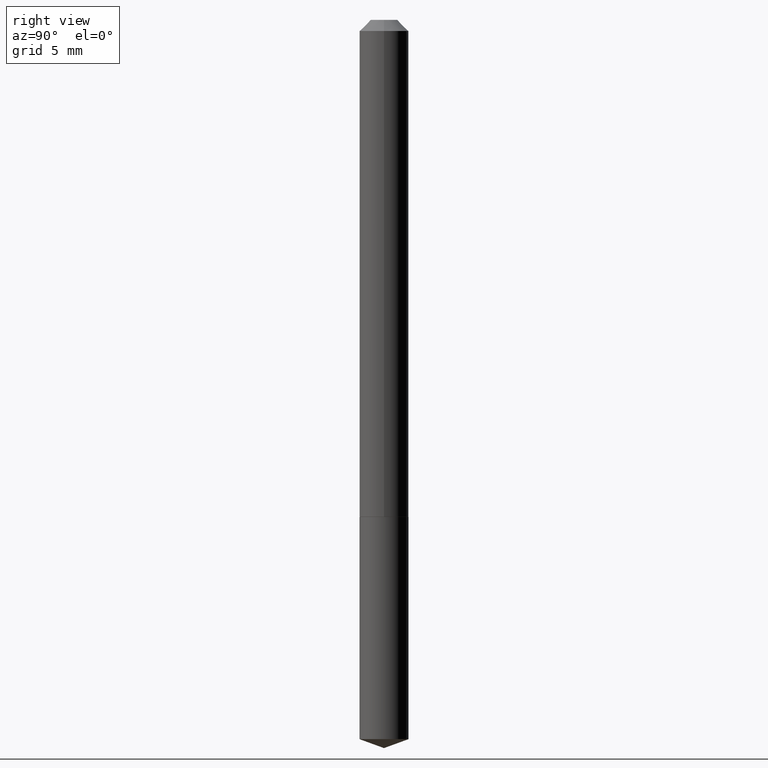
[diagram: clean part render]
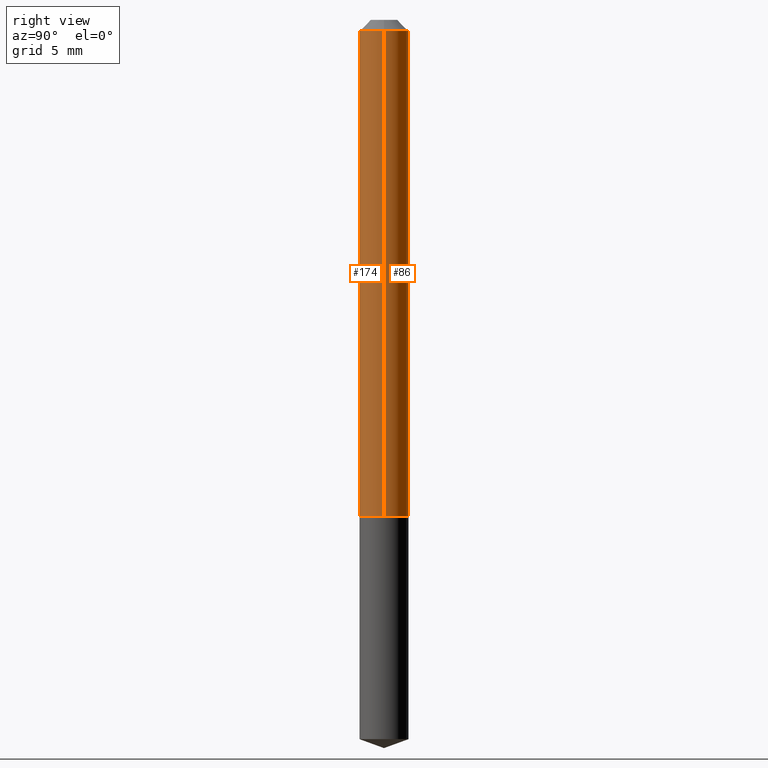
[diagram: same view with one multi-face feature highlighted, each face labeled with its STEP entity id]
A machine part, right view. The highlighted faces form ONE feature: a constant-radius fillet chain: 2 tangent blend faces with common blend radius 1.7501 mm. The faces share edges in the B-rep.
Their STEP definitions:
[1] entity #174 (Cylinder):
#8 = VECTOR ( 'NONE', #107, 39.37007874015748143 ) ;
#16 = CARTESIAN_POINT ( 'NONE',  ( 3.416564469121255341E-29, -4.877948578497760120E-15, -1.397100000000000453 ) ) ;
#25 = CARTESIAN_POINT ( 'NONE',  ( 0.000000000000000000, 0.000000000000000000, 0.000000000000000000 ) ) ;
#42 = DIRECTION ( 'NONE',  ( -2.445468806185136877E-29, 3.491481338843145188E-15, 1.000000000000000000 ) ) ;
#43 = EDGE_CURVE ( 'NONE', #92, #228, #121, .T. ) ;
#45 = ORIENTED_EDGE ( 'NONE', *, *, #192, .T. ) ;
#46 = DIRECTION ( 'NONE',  ( 1.000000000000000000, -6.982962677686267499E-15, 0.000000000000000000 ) ) ;
#48 = EDGE_CURVE ( 'NONE', #160, #376, #216, .T. ) ;
#80 = DIRECTION ( 'NONE',  ( 1.000000000000000000, -6.982962677686267499E-15, 4.876176775795936353E-29 ) ) ;
#92 = VERTEX_POINT ( 'NONE', #334 ) ;
#98 = DIRECTION ( 'NONE',  ( 1.000000000000000000, -6.982962677686261977E-15, 0.000000000000000000 ) ) ;
#107 = DIRECTION ( 'NONE',  ( -2.445468806185136877E-29, 3.491481338843145188E-15, 1.000000000000000000 ) ) ;
#121 = CIRCLE ( 'NONE', #254, 0.06890000000000018332 ) ;
#125 = ORIENTED_EDGE ( 'NONE', *, *, #43, .T. ) ;
#133 = AXIS2_PLACEMENT_3D ( 'NONE', #339, #315, #46 ) ;
#158 = CARTESIAN_POINT ( 'NONE',  ( 0.06890000000000000291, -5.902349203314328391E-16, -0.03125000000000020817 ) ) ;
#160 = VERTEX_POINT ( 'NONE', #178 ) ;
#174 = ADVANCED_FACE ( 'NONE', ( #328 ), #293, .T. ) ;
#178 = CARTESIAN_POINT ( 'NONE',  ( -0.06890000000000000291, -2.003964740229593886E-15, -0.03125000000000020817 ) ) ;
#180 = AXIS2_PLACEMENT_3D ( 'NONE', #25, #241, #80 ) ;
#181 = LINE ( 'NONE', #304, #261 ) ;
#192 = EDGE_CURVE ( 'NONE', #228, #376, #301, .T. ) ;
#194 = ORIENTED_EDGE ( 'NONE', *, *, #370, .F. ) ;
#216 = CIRCLE ( 'NONE', #133, 0.06890000000000000291 ) ;
#228 = VERTEX_POINT ( 'NONE', #386 ) ;
#241 = DIRECTION ( 'NONE',  ( -2.445468806185136597E-29, 3.491481338843145583E-15, 1.000000000000000000 ) ) ;
#254 = AXIS2_PLACEMENT_3D ( 'NONE', #16, #313, #98 ) ;
#261 = VECTOR ( 'NONE', #42, 39.37007874015748143 ) ;
#262 = ORIENTED_EDGE ( 'NONE', *, *, #48, .F. ) ;
#293 = CYLINDRICAL_SURFACE ( 'NONE', #180, 0.06890000000000008618 ) ;
#301 = LINE ( 'NONE', #379, #8 ) ;
#304 = CARTESIAN_POINT ( 'NONE',  ( -0.06890000000000008618, 4.895639449387096404E-16, -3.389146277185634221E-30 ) ) ;
#313 = DIRECTION ( 'NONE',  ( -2.445468806185136597E-29, 3.491481338843145583E-15, 1.000000000000000000 ) ) ;
#315 = DIRECTION ( 'NONE',  ( -2.445468806185136597E-29, 3.491481338843145583E-15, 1.000000000000000000 ) ) ;
#328 = FACE_OUTER_BOUND ( 'NONE', #374, .T. ) ;
#334 = CARTESIAN_POINT ( 'NONE',  ( -0.06890000000000018332, -4.388384633559049790E-15, -1.397100000000000453 ) ) ;
#339 = CARTESIAN_POINT ( 'NONE',  ( 7.642090019328602662E-31, -1.091087918388490267E-16, -0.03125000000000020817 ) ) ;
#370 = EDGE_CURVE ( 'NONE', #92, #160, #181, .T. ) ;
#374 = EDGE_LOOP ( 'NONE', ( #194, #125, #45, #262 ) ) ;
#376 = VERTEX_POINT ( 'NONE', #158 ) ;
#379 = CARTESIAN_POINT ( 'NONE',  ( 0.06890000000000008618, -4.811261284925844287E-16, 3.359685798523404173E-30 ) ) ;
#386 = CARTESIAN_POINT ( 'NONE',  ( 0.06890000000000018332, -5.359074706990345437E-15, -1.397100000000000453 ) ) ;
[2] entity #86 (Cylinder):
#8 = VECTOR ( 'NONE', #107, 39.37007874015748143 ) ;
#13 = AXIS2_PLACEMENT_3D ( 'NONE', #27, #212, #205 ) ;
#26 = CIRCLE ( 'NONE', #13, 0.06890000000000018332 ) ;
#27 = CARTESIAN_POINT ( 'NONE',  ( 3.416564469121255341E-29, -4.877948578497760120E-15, -1.397100000000000453 ) ) ;
#32 = DIRECTION ( 'NONE',  ( -2.445468806185136597E-29, 3.491481338843145583E-15, 1.000000000000000000 ) ) ;
#34 = CARTESIAN_POINT ( 'NONE',  ( 0.000000000000000000, 0.000000000000000000, 0.000000000000000000 ) ) ;
#42 = DIRECTION ( 'NONE',  ( -2.445468806185136877E-29, 3.491481338843145188E-15, 1.000000000000000000 ) ) ;
#52 = CIRCLE ( 'NONE', #95, 0.06890000000000000291 ) ;
#86 = ADVANCED_FACE ( 'NONE', ( #323 ), #295, .T. ) ;
#88 = ORIENTED_EDGE ( 'NONE', *, *, #219, .T. ) ;
#92 = VERTEX_POINT ( 'NONE', #334 ) ;
#95 = AXIS2_PLACEMENT_3D ( 'NONE', #351, #32, #385 ) ;
#107 = DIRECTION ( 'NONE',  ( -2.445468806185136877E-29, 3.491481338843145188E-15, 1.000000000000000000 ) ) ;
#132 = ORIENTED_EDGE ( 'NONE', *, *, #192, .F. ) ;
#135 = EDGE_CURVE ( 'NONE', #376, #160, #52, .T. ) ;
#158 = CARTESIAN_POINT ( 'NONE',  ( 0.06890000000000000291, -5.902349203314328391E-16, -0.03125000000000020817 ) ) ;
#160 = VERTEX_POINT ( 'NONE', #178 ) ;
#178 = CARTESIAN_POINT ( 'NONE',  ( -0.06890000000000000291, -2.003964740229593886E-15, -0.03125000000000020817 ) ) ;
#181 = LINE ( 'NONE', #304, #261 ) ;
#192 = EDGE_CURVE ( 'NONE', #228, #376, #301, .T. ) ;
#205 = DIRECTION ( 'NONE',  ( 1.000000000000000000, -6.982962677686261977E-15, 0.000000000000000000 ) ) ;
#212 = DIRECTION ( 'NONE',  ( -2.445468806185136597E-29, 3.491481338843145583E-15, 1.000000000000000000 ) ) ;
#219 = EDGE_CURVE ( 'NONE', #228, #92, #26, .T. ) ;
#228 = VERTEX_POINT ( 'NONE', #386 ) ;
#261 = VECTOR ( 'NONE', #42, 39.37007874015748143 ) ;
#280 = DIRECTION ( 'NONE',  ( 1.000000000000000000, -6.982962677686267499E-15, 4.876176775795936353E-29 ) ) ;
#288 = ORIENTED_EDGE ( 'NONE', *, *, #135, .F. ) ;
#295 = CYLINDRICAL_SURFACE ( 'NONE', #355, 0.06890000000000008618 ) ;
#301 = LINE ( 'NONE', #379, #8 ) ;
#304 = CARTESIAN_POINT ( 'NONE',  ( -0.06890000000000008618, 4.895639449387096404E-16, -3.389146277185634221E-30 ) ) ;
#323 = FACE_OUTER_BOUND ( 'NONE', #373, .T. ) ;
#334 = CARTESIAN_POINT ( 'NONE',  ( -0.06890000000000018332, -4.388384633559049790E-15, -1.397100000000000453 ) ) ;
#351 = CARTESIAN_POINT ( 'NONE',  ( 7.642090019328602662E-31, -1.091087918388490267E-16, -0.03125000000000020817 ) ) ;
#355 = AXIS2_PLACEMENT_3D ( 'NONE', #34, #361, #280 ) ;
#358 = ORIENTED_EDGE ( 'NONE', *, *, #370, .T. ) ;
#361 = DIRECTION ( 'NONE',  ( -2.445468806185136597E-29, 3.491481338843145583E-15, 1.000000000000000000 ) ) ;
#370 = EDGE_CURVE ( 'NONE', #92, #160, #181, .T. ) ;
#373 = EDGE_LOOP ( 'NONE', ( #88, #358, #288, #132 ) ) ;
#376 = VERTEX_POINT ( 'NONE', #158 ) ;
#379 = CARTESIAN_POINT ( 'NONE',  ( 0.06890000000000008618, -4.811261284925844287E-16, 3.359685798523404173E-30 ) ) ;
#385 = DIRECTION ( 'NONE',  ( 1.000000000000000000, -6.982962677686267499E-15, 0.000000000000000000 ) ) ;
#386 = CARTESIAN_POINT ( 'NONE',  ( 0.06890000000000018332, -5.359074706990345437E-15, -1.397100000000000453 ) ) ;